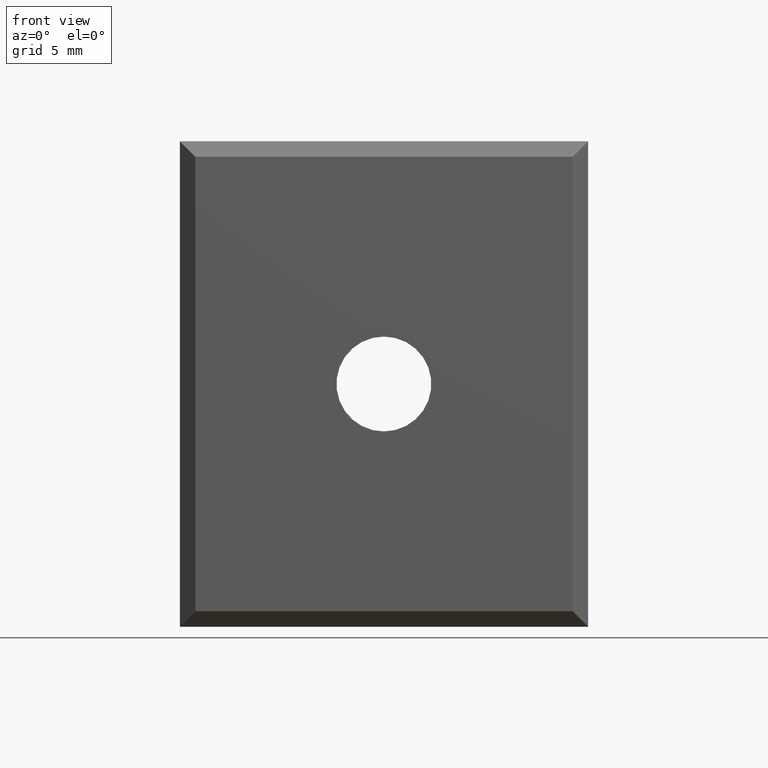
[diagram: clean part render]
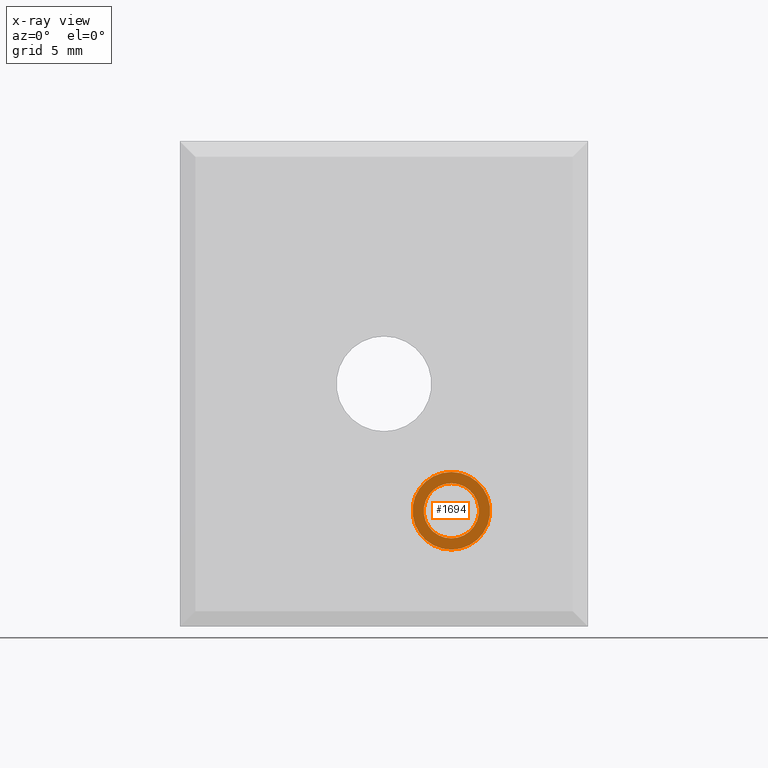
[diagram: x-ray — body ghosted, one internal face saturated and labeled with its STEP entity id]
A machine part, front view, then the same camera in x-ray: the body is ghosted and one INTERNAL B-rep face — a face not visible from any outside direction — is saturated and labeled: STEP entity #1694.
In plain terms, the highlighted planar face has unit normal (0, -1, -0).
Its self-contained STEP definition (entity closure, byte-faithful):
#60 = VERTEX_POINT ( 'NONE', #309 ) ;
#74 = VERTEX_POINT ( 'NONE', #313 ) ;
#94 = VERTEX_POINT ( 'NONE', #303 ) ;
#115 = VERTEX_POINT ( 'NONE', #360 ) ;
#303 = CARTESIAN_POINT ( 'NONE',  ( 12.05491892012632100, 10.30708445924291500, -17.74609177772884600 ) ) ;
#309 = CARTESIAN_POINT ( 'NONE',  ( 12.05491892012632100, 10.30708445924291500, -14.73559148781153100 ) ) ;
#313 = CARTESIAN_POINT ( 'NONE',  ( 12.05491892012632100, 10.30708445924291500, -15.24609177772889800 ) ) ;
#360 = CARTESIAN_POINT ( 'NONE',  ( 12.05491892012632100, 10.30708445924291500, -18.25659206764621300 ) ) ;
#845 = ORIENTED_EDGE ( 'NONE', *, *, #2462, .F. ) ;
#846 = ORIENTED_EDGE ( 'NONE', *, *, #5073, .F. ) ;
#873 = ORIENTED_EDGE ( 'NONE', *, *, #2371, .T. ) ;
#877 = ORIENTED_EDGE ( 'NONE', *, *, #2421, .T. ) ;
#1036 = CIRCLE ( 'NONE', #1053, 1.249999999999973400 ) ;
#1053 = AXIS2_PLACEMENT_3D ( 'NONE', #3129, #3181, #3171 ) ;
#1105 = AXIS2_PLACEMENT_3D ( 'NONE', #3625, #3618, #3642 ) ;
#1113 = CIRCLE ( 'NONE', #1105, 1.760500289917341900 ) ;
#1156 = CIRCLE ( 'NONE', #1177, 1.249999999999973400 ) ;
#1177 = AXIS2_PLACEMENT_3D ( 'NONE', #3810, #3820, #3788 ) ;
#1595 = EDGE_LOOP ( 'NONE', ( #873, #877 ) ) ;
#1664 = EDGE_LOOP ( 'NONE', ( #846, #845 ) ) ;
#1694 = ADVANCED_FACE ( 'NONE', ( #4591, #4604 ), #4606, .T. ) ;
#2371 = EDGE_CURVE ( 'NONE', #115, #60, #3575, .T. ) ;
#2421 = EDGE_CURVE ( 'NONE', #60, #115, #1113, .T. ) ;
#2462 = EDGE_CURVE ( 'NONE', #74, #94, #1156, .T. ) ;
#3129 = CARTESIAN_POINT ( 'NONE',  ( 12.05491892012632100, 10.30708445924291500, -16.49609177772887100 ) ) ;
#3171 = DIRECTION ( 'NONE',  ( 0.0000000000000000000, 0.0000000000000000000, -1.000000000000000000 ) ) ;
#3181 = DIRECTION ( 'NONE',  ( -0.0000000000000000000, -1.000000000000000000, -0.0000000000000000000 ) ) ;
#3411 = AXIS2_PLACEMENT_3D ( 'NONE', #4607, #4608, #4609 ) ;
#3559 = AXIS2_PLACEMENT_3D ( 'NONE', #3894, #3906, #3872 ) ;
#3575 = CIRCLE ( 'NONE', #3559, 1.760500289917341900 ) ;
#3618 = DIRECTION ( 'NONE',  ( -0.0000000000000000000, -1.000000000000000000, -0.0000000000000000000 ) ) ;
#3625 = CARTESIAN_POINT ( 'NONE',  ( 12.05491892012632100, 10.30708445924291500, -16.49609177772887100 ) ) ;
#3642 = DIRECTION ( 'NONE',  ( 0.0000000000000000000, 0.0000000000000000000, -1.000000000000000000 ) ) ;
#3788 = DIRECTION ( 'NONE',  ( 0.0000000000000000000, 0.0000000000000000000, -1.000000000000000000 ) ) ;
#3810 = CARTESIAN_POINT ( 'NONE',  ( 12.05491892012632100, 10.30708445924291500, -16.49609177772887100 ) ) ;
#3820 = DIRECTION ( 'NONE',  ( -0.0000000000000000000, -1.000000000000000000, -0.0000000000000000000 ) ) ;
#3872 = DIRECTION ( 'NONE',  ( 0.0000000000000000000, 0.0000000000000000000, -1.000000000000000000 ) ) ;
#3894 = CARTESIAN_POINT ( 'NONE',  ( 12.05491892012632100, 10.30708445924291500, -16.49609177772887100 ) ) ;
#3906 = DIRECTION ( 'NONE',  ( -0.0000000000000000000, -1.000000000000000000, -0.0000000000000000000 ) ) ;
#4591 = FACE_OUTER_BOUND ( 'NONE', #1595, .T. ) ;
#4604 = FACE_BOUND ( 'NONE', #1664, .T. ) ;
#4606 = PLANE ( 'NONE',  #3411 ) ;
#4607 = CARTESIAN_POINT ( 'NONE',  ( 13.30491892012629400, 10.30708445924291500, -16.49609177772887100 ) ) ;
#4608 = DIRECTION ( 'NONE',  ( 0.0000000000000000000, -1.000000000000000000, -0.0000000000000000000 ) ) ;
#4609 = DIRECTION ( 'NONE',  ( 0.0000000000000000000, 0.0000000000000000000, -1.000000000000000000 ) ) ;
#5073 = EDGE_CURVE ( 'NONE', #94, #74, #1036, .T. ) ;